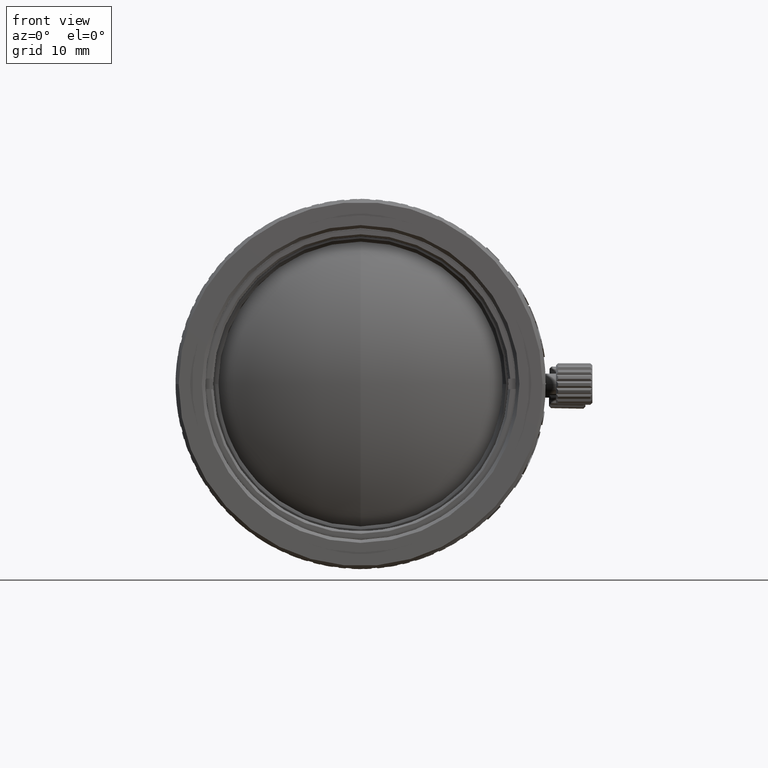
[diagram: clean part render]
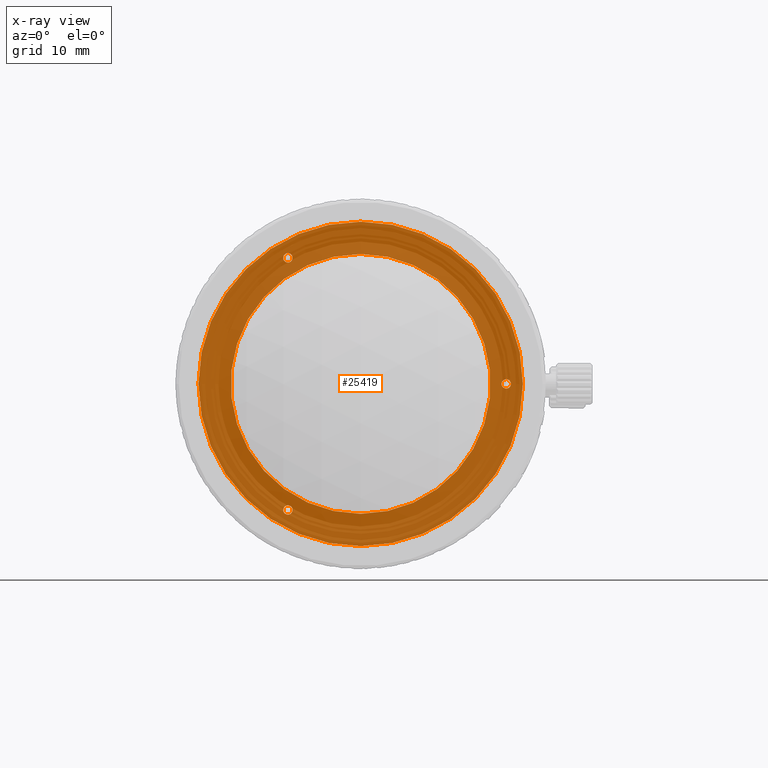
[diagram: x-ray — body ghosted, one internal face saturated and labeled with its STEP entity id]
A machine part, front view, then the same camera in x-ray: the body is ghosted and one INTERNAL B-rep face — a face not visible from any outside direction — is saturated and labeled: STEP entity #25419.
In plain terms, the highlighted planar face has unit normal (0, -1, 0).
Its self-contained STEP definition (entity closure, byte-faithful):
#138 = DIRECTION ( 'NONE',  ( -0.000000000000000000, -1.000000000000000000, 0.000000000000000000 ) ) ;
#309 = ORIENTED_EDGE ( 'NONE', *, *, #56126, .T. ) ;
#331 = CIRCLE ( 'NONE', #31075, 0.4500000000060671024 ) ;
#572 = EDGE_CURVE ( 'NONE', #1672, #64919, #331, .T. ) ;
#965 = DIRECTION ( 'NONE',  ( 0.000000000000000000, -1.000000000000000000, 0.000000000000000000 ) ) ;
#1672 = VERTEX_POINT ( 'NONE', #63121 ) ;
#3057 = DIRECTION ( 'NONE',  ( 0.000000000000000000, 0.000000000000000000, 1.000000000000000000 ) ) ;
#3239 = DIRECTION ( 'NONE',  ( 0.000000000000000000, 1.000000000000000000, 0.000000000000000000 ) ) ;
#3933 = CARTESIAN_POINT ( 'NONE',  ( 10.50001204309999991, 20.56001826908987340, -5.825656049531405145 ) ) ;
#4623 = EDGE_CURVE ( 'NONE', #64919, #1672, #26109, .T. ) ;
#5522 = AXIS2_PLACEMENT_3D ( 'NONE', #47627, #36576, #20536 ) ;
#5829 = CARTESIAN_POINT ( 'NONE',  ( 17.50001204309999991, 20.56001826908947194, -17.50001170252000193 ) ) ;
#6790 = EDGE_CURVE ( 'NONE', #56088, #42817, #9258, .T. ) ;
#7175 = DIRECTION ( 'NONE',  ( 0.000000000000000000, 0.000000000000000000, 1.000000000000000000 ) ) ;
#7478 = EDGE_CURVE ( 'NONE', #53992, #37840, #54857, .T. ) ;
#7713 = FACE_BOUND ( 'NONE', #8857, .T. ) ;
#8212 = DIRECTION ( 'NONE',  ( 0.000000000000000000, 0.000000000000000000, 1.000000000000000000 ) ) ;
#8857 = EDGE_LOOP ( 'NONE', ( #10999, #42827 ) ) ;
#9258 = CIRCLE ( 'NONE', #62808, 0.4500000000000025091 ) ;
#10187 = VERTEX_POINT ( 'NONE', #51777 ) ;
#10804 = CARTESIAN_POINT ( 'NONE',  ( 31.50001204310000347, 20.56001826908987340, -17.05001170251999909 ) ) ;
#10998 = ORIENTED_EDGE ( 'NONE', *, *, #21091, .T. ) ;
#10999 = ORIENTED_EDGE ( 'NONE', *, *, #6790, .T. ) ;
#11665 = DIRECTION ( 'NONE',  ( 0.000000000000000000, -0.000000000000000000, -1.000000000000000000 ) ) ;
#12235 = DIRECTION ( 'NONE',  ( 0.000000000000000000, 1.000000000000000000, -0.000000000000000000 ) ) ;
#12559 = DIRECTION ( 'NONE',  ( 0.000000000000000000, 1.000000000000000000, -0.000000000000000000 ) ) ;
#13558 = CIRCLE ( 'NONE', #23767, 12.50000000000000000 ) ;
#16275 = CARTESIAN_POINT ( 'NONE',  ( 17.50001204309999991, 20.56001826908983432, -30.00001170252000549 ) ) ;
#19007 = CARTESIAN_POINT ( 'NONE',  ( 10.50001204309999991, 20.56001826908987340, -5.375656049534000225 ) ) ;
#19678 = EDGE_CURVE ( 'NONE', #10187, #43508, #13558, .T. ) ;
#20536 = DIRECTION ( 'NONE',  ( 0.000000000000000000, 0.000000000000000000, 1.000000000000000000 ) ) ;
#21091 = EDGE_CURVE ( 'NONE', #55263, #33049, #57940, .T. ) ;
#23055 = FACE_OUTER_BOUND ( 'NONE', #55278, .T. ) ;
#23523 = EDGE_LOOP ( 'NONE', ( #55253, #30682 ) ) ;
#23767 = AXIS2_PLACEMENT_3D ( 'NONE', #52088, #3239, #7175 ) ;
#24739 = DIRECTION ( 'NONE',  ( 0.000000000000000000, 0.000000000000000000, 1.000000000000000000 ) ) ;
#25224 = AXIS2_PLACEMENT_3D ( 'NONE', #29805, #41204, #3057 ) ;
#25419 = ADVANCED_FACE ( 'NONE', ( #23055, #56214, #7713, #51233, #39454 ), #55858, .T. ) ;
#26109 = CIRCLE ( 'NONE', #40932, 0.4500000000060671024 ) ;
#28242 = CARTESIAN_POINT ( 'NONE',  ( 10.50001204309999991, 20.56001826908987340, -5.375656049534000225 ) ) ;
#29805 = CARTESIAN_POINT ( 'NONE',  ( 17.50001204309999991, 20.56001826908983432, -17.50001170252000193 ) ) ;
#29827 = AXIS2_PLACEMENT_3D ( 'NONE', #19007, #12235, #62508 ) ;
#30682 = ORIENTED_EDGE ( 'NONE', *, *, #67176, .T. ) ;
#31075 = AXIS2_PLACEMENT_3D ( 'NONE', #40796, #56849, #24739 ) ;
#33049 = VERTEX_POINT ( 'NONE', #59959 ) ;
#33175 = CIRCLE ( 'NONE', #25224, 12.50000000000000000 ) ;
#36576 = DIRECTION ( 'NONE',  ( -0.000000000000000000, -1.000000000000000000, 0.000000000000000000 ) ) ;
#37264 = EDGE_CURVE ( 'NONE', #42817, #56088, #60337, .T. ) ;
#37840 = VERTEX_POINT ( 'NONE', #3933 ) ;
#39454 = FACE_BOUND ( 'NONE', #46620, .T. ) ;
#40512 = CIRCLE ( 'NONE', #66706, 0.4499999999974047538 ) ;
#40657 = CARTESIAN_POINT ( 'NONE',  ( 31.50001204310000347, 20.56001826908987340, -17.50001170252000193 ) ) ;
#40691 = ORIENTED_EDGE ( 'NONE', *, *, #4623, .T. ) ;
#40796 = CARTESIAN_POINT ( 'NONE',  ( 10.50001204309999991, 20.56001826908987340, -29.62436735549999867 ) ) ;
#40932 = AXIS2_PLACEMENT_3D ( 'NONE', #58366, #48373, #47667 ) ;
#41204 = DIRECTION ( 'NONE',  ( 0.000000000000000000, 1.000000000000000000, 0.000000000000000000 ) ) ;
#42817 = VERTEX_POINT ( 'NONE', #58593 ) ;
#42827 = ORIENTED_EDGE ( 'NONE', *, *, #37264, .T. ) ;
#43508 = VERTEX_POINT ( 'NONE', #16275 ) ;
#44994 = ORIENTED_EDGE ( 'NONE', *, *, #61475, .T. ) ;
#45157 = CARTESIAN_POINT ( 'NONE',  ( 33.72401205048999628, 20.56001826909000485, -33.72401170252000213 ) ) ;
#45667 = ORIENTED_EDGE ( 'NONE', *, *, #572, .T. ) ;
#46620 = EDGE_LOOP ( 'NONE', ( #69560, #309 ) ) ;
#47627 = CARTESIAN_POINT ( 'NONE',  ( 17.50001204309999991, 20.56001826908947194, -17.50001170252000193 ) ) ;
#47667 = DIRECTION ( 'NONE',  ( 0.000000000000000000, 0.000000000000000000, 1.000000000000000000 ) ) ;
#47692 = AXIS2_PLACEMENT_3D ( 'NONE', #5829, #138, #59326 ) ;
#47773 = DIRECTION ( 'NONE',  ( -0.000000000000000000, 1.000000000000000000, 0.000000000000000000 ) ) ;
#48373 = DIRECTION ( 'NONE',  ( 0.000000000000000000, 1.000000000000000000, 0.000000000000000000 ) ) ;
#50011 = DIRECTION ( 'NONE',  ( 0.000000000000000000, 0.000000000000000000, 1.000000000000000000 ) ) ;
#50115 = AXIS2_PLACEMENT_3D ( 'NONE', #61984, #51647, #56272 ) ;
#50732 = EDGE_LOOP ( 'NONE', ( #45667, #40691 ) ) ;
#51233 = FACE_BOUND ( 'NONE', #50732, .T. ) ;
#51647 = DIRECTION ( 'NONE',  ( -0.000000000000000000, 1.000000000000000000, 0.000000000000000000 ) ) ;
#51777 = CARTESIAN_POINT ( 'NONE',  ( 17.50001204309999991, 20.56001826908983432, -5.000011702520002821 ) ) ;
#52088 = CARTESIAN_POINT ( 'NONE',  ( 17.50001204309999991, 20.56001826908983432, -17.50001170252000193 ) ) ;
#53992 = VERTEX_POINT ( 'NONE', #62720 ) ;
#54857 = CIRCLE ( 'NONE', #29827, 0.4499999999974047538 ) ;
#55253 = ORIENTED_EDGE ( 'NONE', *, *, #19678, .T. ) ;
#55263 = VERTEX_POINT ( 'NONE', #66583 ) ;
#55278 = EDGE_LOOP ( 'NONE', ( #10998, #44994 ) ) ;
#55858 = PLANE ( 'NONE',  #69094 ) ;
#56088 = VERTEX_POINT ( 'NONE', #10804 ) ;
#56126 = EDGE_CURVE ( 'NONE', #37840, #53992, #40512, .T. ) ;
#56214 = FACE_BOUND ( 'NONE', #23523, .T. ) ;
#56272 = DIRECTION ( 'NONE',  ( 0.000000000000000000, 0.000000000000000000, 1.000000000000000000 ) ) ;
#56849 = DIRECTION ( 'NONE',  ( 0.000000000000000000, 1.000000000000000000, 0.000000000000000000 ) ) ;
#57940 = CIRCLE ( 'NONE', #5522, 15.59999999999999609 ) ;
#58278 = CARTESIAN_POINT ( 'NONE',  ( 10.50001204309999991, 20.56001826908987340, -30.07436735550606599 ) ) ;
#58366 = CARTESIAN_POINT ( 'NONE',  ( 10.50001204309999991, 20.56001826908987340, -29.62436735549999867 ) ) ;
#58593 = CARTESIAN_POINT ( 'NONE',  ( 31.50001204310000347, 20.56001826908987340, -17.95001170252000477 ) ) ;
#59326 = DIRECTION ( 'NONE',  ( 0.000000000000000000, 0.000000000000000000, 1.000000000000000000 ) ) ;
#59959 = CARTESIAN_POINT ( 'NONE',  ( 17.50001204310000347, 20.56001826908947194, -33.10001170251999980 ) ) ;
#60337 = CIRCLE ( 'NONE', #50115, 0.4500000000000025091 ) ;
#61475 = EDGE_CURVE ( 'NONE', #33049, #55263, #68189, .T. ) ;
#61984 = CARTESIAN_POINT ( 'NONE',  ( 31.50001204310000347, 20.56001826908987340, -17.50001170252000193 ) ) ;
#62508 = DIRECTION ( 'NONE',  ( 0.000000000000000000, 0.000000000000000000, 1.000000000000000000 ) ) ;
#62720 = CARTESIAN_POINT ( 'NONE',  ( 10.50001204309999991, 20.56001826908987340, -4.925656049536596193 ) ) ;
#62808 = AXIS2_PLACEMENT_3D ( 'NONE', #40657, #47773, #8212 ) ;
#63121 = CARTESIAN_POINT ( 'NONE',  ( 10.50001204309999991, 20.56001826908987340, -29.17436735549393134 ) ) ;
#64919 = VERTEX_POINT ( 'NONE', #58278 ) ;
#66583 = CARTESIAN_POINT ( 'NONE',  ( 17.50001204309999991, 20.56001826908947194, -1.900011702520007617 ) ) ;
#66706 = AXIS2_PLACEMENT_3D ( 'NONE', #28242, #12559, #50011 ) ;
#67176 = EDGE_CURVE ( 'NONE', #43508, #10187, #33175, .T. ) ;
#68189 = CIRCLE ( 'NONE', #47692, 15.59999999999999609 ) ;
#69094 = AXIS2_PLACEMENT_3D ( 'NONE', #45157, #965, #11665 ) ;
#69560 = ORIENTED_EDGE ( 'NONE', *, *, #7478, .T. ) ;